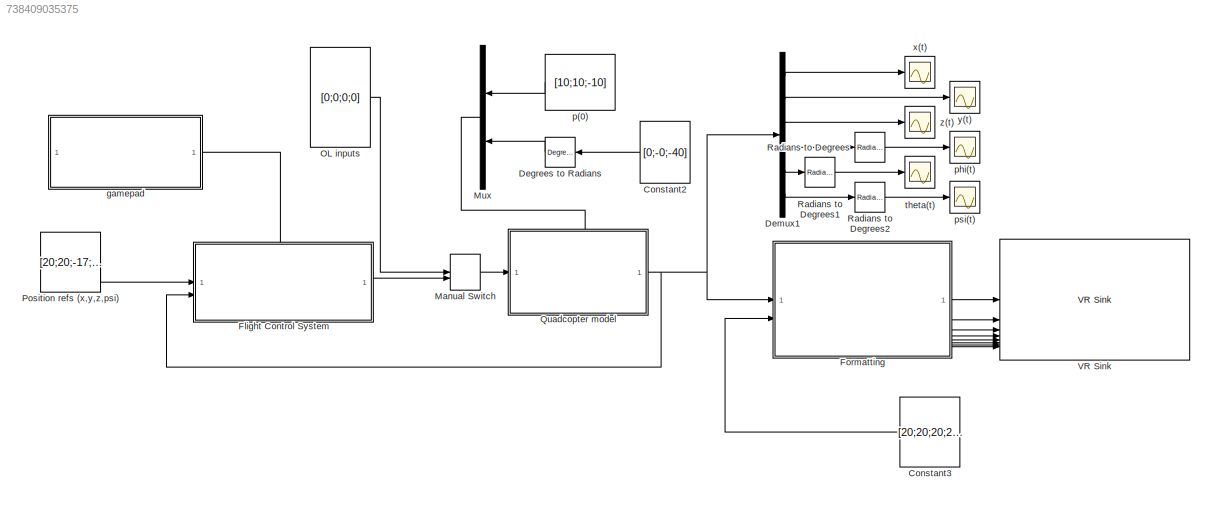
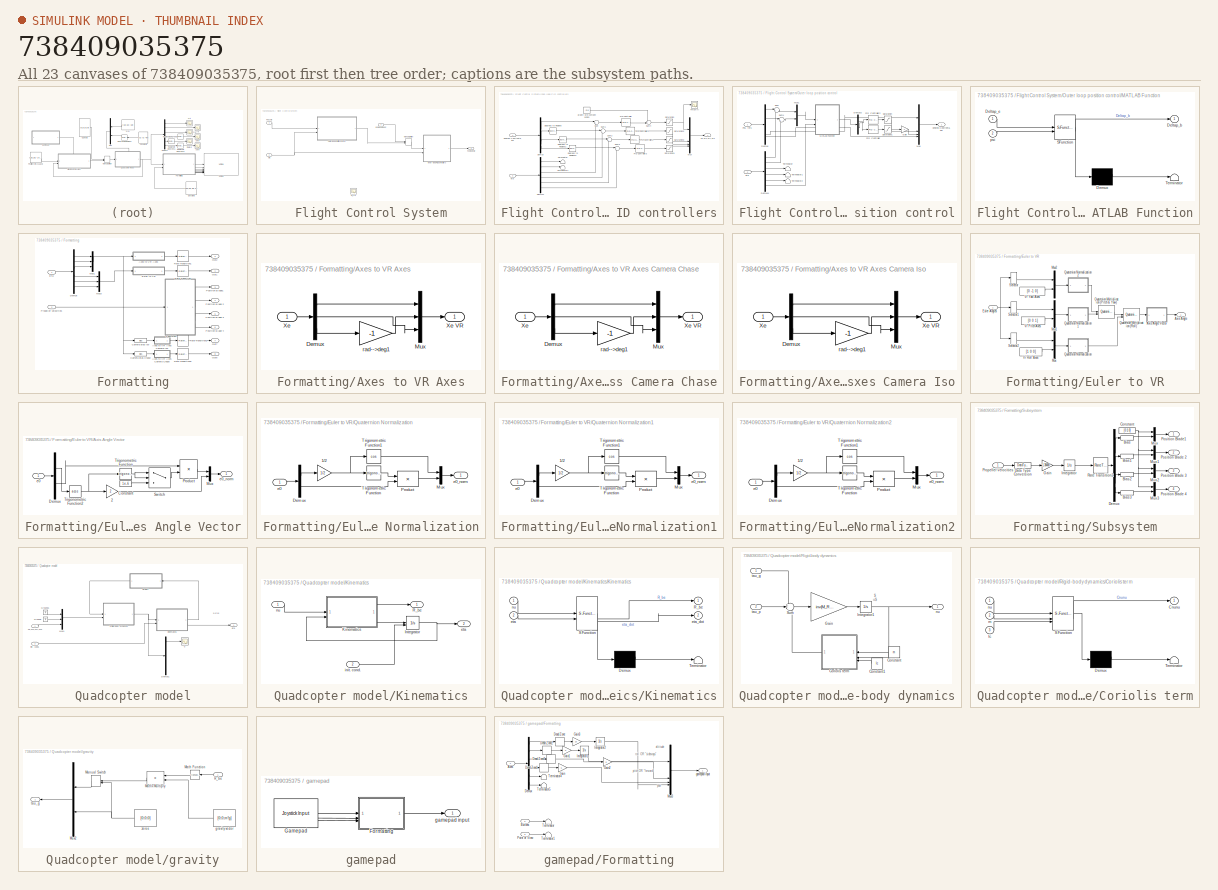
[diagram: thumbnail index - all 23 canvases of the model, root first then tree order]
MODEL slx_738409035375
KIND model
CONFIG AbsTol = auto
CONFIG EnableMultiTasking = on
CONFIG FixedStep = 0.005
CONFIG MaxStep = auto
CONFIG MinStep = auto
CONFIG RelTol = 1e-3
CONFIG SampleTimeConstraint = Unconstrained
CONFIG SolverName = ode3
CONFIG StartTime = 0
CONFIG StopTime = inf
BLOCK [Constant] Constant2
  Value = [0;-0;-40]
  VectorParams1D = off
BLOCK [Constant] Constant3
  Value = [20;20;20;20]
  VectorParams1D = off
BLOCK [Reference] Degrees to Radians  REF=simulink_extras/Transformations/Degrees to
Radians
  NameLocation = top
  SourceBlock = simulink_extras/Transformations/Degrees to\nRadians
  SourceType = DegreesToRadians
BLOCK [Demux] Demux1
  Outputs = 6
BLOCK [SubSystem] Flight Control System
  PortSchema = {"entries":[{"content":{"sides":[{"content":{"connectorIds":["In1","In2"]},"type":"ConnectorPlacement.EquallySpacedRectSide","uuid":"8ffec179-99fb-4b4c-a09d-a73fa0154dea"},{"content":{"connectorIds":["Out1"],"side":"RIGHT"},"type":"ConnectorPlacement.EquallySpacedRectSide","uuid":"b9ff487d-1da1-449a-81c9-f1838b0d3727"},{"content":{"connectorIds":["In3"],"side":"TOP"},"type":"ConnectorPlacement.Equ...<+251ch>
BLOCK [Outport] Flight Control System/Fz,mx,my,mz
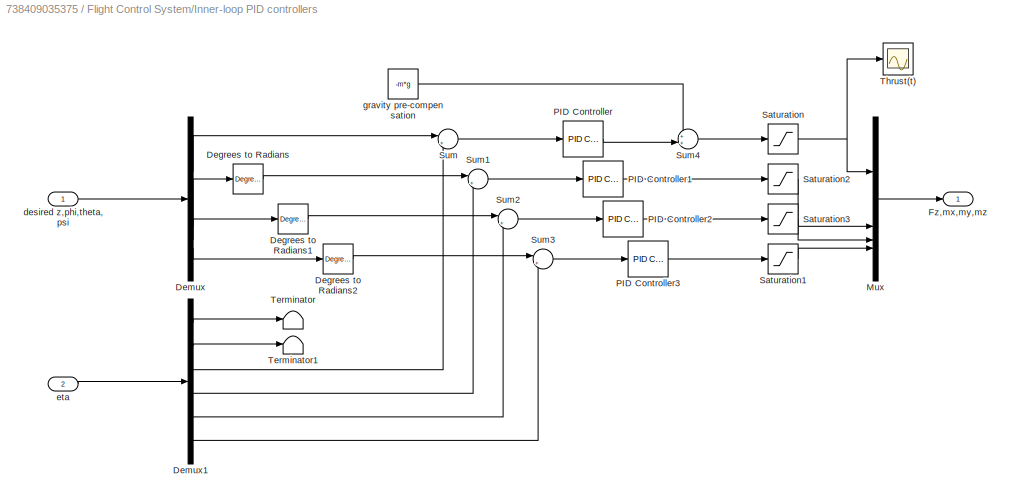
BLOCK [SubSystem] Flight Control System/Inner-loop PID controllers
BLOCK [Reference] Flight Control System/Inner-loop PID controllers/Degrees to Radians  REF=simulink_extras/Transformations/Degrees to
Radians
  SourceBlock = simulink_extras/Transformations/Degrees to\nRadians
  SourceType = DegreesToRadians
BLOCK [Reference] Flight Control System/Inner-loop PID controllers/Degrees to Radians1  REF=simulink_extras/Transformations/Degrees to
Radians
  SourceBlock = simulink_extras/Transformations/Degrees to\nRadians
  SourceType = DegreesToRadians
BLOCK [Reference] Flight Control System/Inner-loop PID controllers/Degrees to Radians2  REF=simulink_extras/Transformations/Degrees to
Radians
  SourceBlock = simulink_extras/Transformations/Degrees to\nRadians
  SourceType = DegreesToRadians
BLOCK [Demux] Flight Control System/Inner-loop PID controllers/Demux
BLOCK [Demux] Flight Control System/Inner-loop PID controllers/Demux1
  Outputs = 6
BLOCK [Outport] Flight Control System/Inner-loop PID controllers/Fz,mx,my,mz
BLOCK [Mux] Flight Control System/Inner-loop PID controllers/Mux
  DisplayOption = bar
BLOCK [Reference] Flight Control System/Inner-loop PID controllers/PID Controller  REF=slpidlib/PID Controller
  LibrarySourceBlock = simulink/Continuous/PID Controller
  SourceBlock = slpidlib/PID Controller
  SourceType = PID 1dof
BLOCK [Reference] Flight Control System/Inner-loop PID controllers/PID Controller1  REF=slpidlib/PID Controller
  LibrarySourceBlock = simulink/Continuous/PID Controller
  SourceBlock = slpidlib/PID Controller
  SourceType = PID 1dof
BLOCK [Reference] Flight Control System/Inner-loop PID controllers/PID Controller2  REF=slpidlib/PID Controller
  LibrarySourceBlock = simulink/Continuous/PID Controller
  SourceBlock = slpidlib/PID Controller
  SourceType = PID 1dof
BLOCK [Reference] Flight Control System/Inner-loop PID controllers/PID Controller3  REF=slpidlib/PID Controller
  LibrarySourceBlock = simulink/Continuous/PID Controller
  SourceBlock = slpidlib/PID Controller
  SourceType = PID 1dof
BLOCK [Saturate] Flight Control System/Inner-loop PID controllers/Saturation
  LowerLimit = -100
  UpperLimit = 100
BLOCK [Saturate] Flight Control System/Inner-loop PID controllers/Saturation1
  LowerLimit = -100
  UpperLimit = 100
BLOCK [Saturate] Flight Control System/Inner-loop PID controllers/Saturation2
  LowerLimit = -100
  UpperLimit = 100
BLOCK [Saturate] Flight Control System/Inner-loop PID controllers/Saturation3
  LowerLimit = -100
  UpperLimit = 100
BLOCK [Sum] Flight Control System/Inner-loop PID controllers/Sum
  Inputs = |+-
BLOCK [Sum] Flight Control System/Inner-loop PID controllers/Sum1
  Inputs = |+-
BLOCK [Sum] Flight Control System/Inner-loop PID controllers/Sum2
  Inputs = |+-
BLOCK [Sum] Flight Control System/Inner-loop PID controllers/Sum3
  Inputs = |+-
BLOCK [Sum] Flight Control System/Inner-loop PID controllers/Sum4
  Inputs = ++|
BLOCK [Terminator] Flight Control System/Inner-loop PID controllers/Terminator
BLOCK [Terminator] Flight Control System/Inner-loop PID controllers/Terminator1
BLOCK [Scope] Flight Control System/Inner-loop PID controllers/Thrust(t)
  Floating = off
  NumInputPorts = 1
  ScopeSpecificationString = Simulink.scopes.TimeScopeBlockCfg('CurrentConfiguration', extmgr.ConfigurationSet(extmgr.Configuration('Core','General UI',true),extmgr.Configuration('Core','Source UI',true),extmgr.Configuration('Sources','WiredSimulink',true,'DataLoggingVariableName','ScopeData6'),extmgr.Configuration('Visuals','Time Domain',true,'SerializedDisplays',{struct('MinYLimReal','-112.66583','MaxYLimReal','13.99248','Y...<+1456ch>
BLOCK [Inport] Flight Control System/Inner-loop PID controllers/desired z,phi,theta,psi
BLOCK [Inport] Flight Control System/Inner-loop PID controllers/eta
  Port = 2
BLOCK [Constant] Flight Control System/Inner-loop PID controllers/gravity pre-compensation
  Value = -m*g
BLOCK [ManualSwitch] Flight Control System/Manual Switch
  CurrentSetting = 0
BLOCK [SubSystem] Flight Control System/Outer loop position control
BLOCK [Demux] Flight Control System/Outer loop position control/Demux
BLOCK [Demux] Flight Control System/Outer loop position control/Demux1
  Outputs = 6
BLOCK [Demux] Flight Control System/Outer loop position control/Demux2
  Outputs = 2
BLOCK [Gain] Flight Control System/Outer loop position control/Gain
  Gain = -1
BLOCK [SubSystem] Flight Control System/Outer loop position control/MATLAB Function
  ErrorFcn = Stateflow.Translate.translate
  PermitHierarchicalResolution = ExplicitOnly
  SFBlockType = MATLAB Function
  TreatAsAtomicUnit = on
BLOCK [Demux] Flight Control System/Outer loop position control/MATLAB Function/ Demux 
  Outputs = 1
BLOCK [S-Function] Flight Control System/Outer loop position control/MATLAB Function/ SFunction 
  EnableBusSupport = on
  FunctionName = sf_sfun
  PortCounts = [2 2]
  SFcnIsStateOwnerBlock = off
  SFunctionDeploymentMode = off
  Tag = Stateflow S-Function 1
BLOCK [Terminator] Flight Control System/Outer loop position control/MATLAB Function/ Terminator 
BLOCK [Outport] Flight Control System/Outer loop position control/MATLAB Function/Deltap_b
BLOCK [Inport] Flight Control System/Outer loop position control/MATLAB Function/Deltap_e
BLOCK [Inport] Flight Control System/Outer loop position control/MATLAB Function/psi
  Port = 2
BLOCK [Mux] Flight Control System/Outer loop position control/Mux
  DisplayOption = bar
BLOCK [Mux] Flight Control System/Outer loop position control/Mux1
  DisplayOption = bar
  Inputs = 2
BLOCK [Reference] Flight Control System/Outer loop position control/PID Controller  REF=slpidlib/PID Controller
  LibrarySourceBlock = simulink/Continuous/PID Controller
  SourceBlock = slpidlib/PID Controller
  SourceType = PID 1dof
BLOCK [Reference] Flight Control System/Outer loop position control/PID Controller2  REF=slpidlib/PID Controller
  LibrarySourceBlock = simulink/Continuous/PID Controller
  SourceBlock = slpidlib/PID Controller
  SourceType = PID 1dof
BLOCK [Inport] Flight Control System/Outer loop position control/Pos. refs
BLOCK [Saturate] Flight Control System/Outer loop position control/Saturation
  LowerLimit = -5
  UpperLimit = 5
BLOCK [Saturate] Flight Control System/Outer loop position control/Saturation1
  LowerLimit = -5
  UpperLimit = 5
BLOCK [Sum] Flight Control System/Outer loop position control/Sum
  Inputs = |+-
BLOCK [Sum] Flight Control System/Outer loop position control/Sum1
  Inputs = |+-
BLOCK [Terminator] Flight Control System/Outer loop position control/Terminator
BLOCK [Terminator] Flight Control System/Outer loop position control/Terminator1
BLOCK [Terminator] Flight Control System/Outer loop position control/Terminator2
BLOCK [Outport] Flight Control System/Outer loop position control/desired z,phi,theta,psi
BLOCK [Inport] Flight Control System/Outer loop position control/eta
  Port = 2
BLOCK [Inport] Flight Control System/Pos. refs
BLOCK [Inport] Flight Control System/eta
  Port = 2
BLOCK [Inport] Flight Control System/gamepad input
  Port = 3
BLOCK [Scope] Flight Control System/m_y(t)
  Floating = off
  NumInputPorts = 1
  ScopeSpecificationString = Simulink.scopes.TimeScopeBlockCfg('CurrentConfiguration', extmgr.ConfigurationSet(extmgr.Configuration('Core','General UI',true),extmgr.Configuration('Core','Source UI',true),extmgr.Configuration('Sources','WiredSimulink',true,'DataLoggingVariableName','ScopeData3'),extmgr.Configuration('Visuals','Time Domain',true,'SerializedDisplays',{struct('MinYLimReal','-1.00000','MaxYLimReal','1.00000','YLab...<+1433ch>
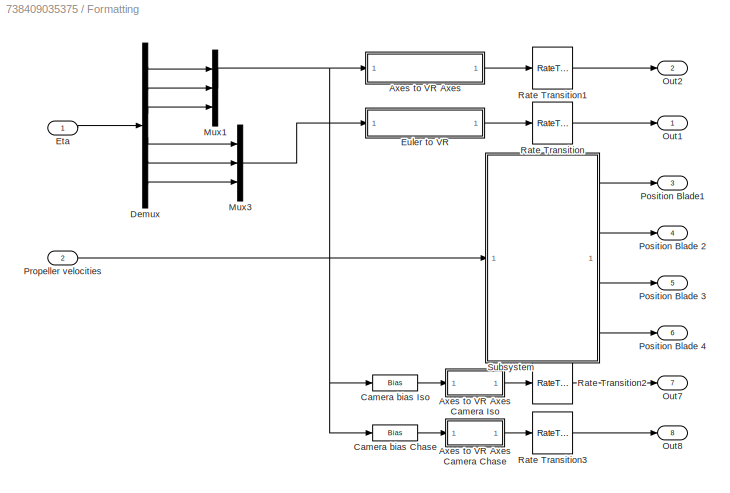
BLOCK [SubSystem] Formatting
BLOCK [SubSystem] Formatting/Axes to VR Axes
BLOCK [SubSystem] Formatting/Axes to VR Axes Camera Chase
BLOCK [Demux] Formatting/Axes to VR Axes Camera Chase/Demux
  DisplayOption = none
  Outputs = 3
BLOCK [Mux] Formatting/Axes to VR Axes Camera Chase/Mux
  DisplayOption = bar
  Inputs = 3
BLOCK [Inport] Formatting/Axes to VR Axes Camera Chase/Xe
BLOCK [Outport] Formatting/Axes to VR Axes Camera Chase/Xe VR
  VectorParamsAs1DForOutWhenUnconnected = off
BLOCK [Gain] Formatting/Axes to VR Axes Camera Chase/rad-->deg1
  Gain = -1
  NameLocation = top
  OutDataTypeStr = Inherit: Same as input
  ParamDataTypeStr = Inherit: Same as input
  SaturateOnIntegerOverflow = on
BLOCK [SubSystem] Formatting/Axes to VR Axes Camera Iso
BLOCK [Demux] Formatting/Axes to VR Axes Camera Iso/Demux
  DisplayOption = none
  Outputs = 3
BLOCK [Mux] Formatting/Axes to VR Axes Camera Iso/Mux
  DisplayOption = bar
  Inputs = 3
BLOCK [Inport] Formatting/Axes to VR Axes Camera Iso/Xe
BLOCK [Outport] Formatting/Axes to VR Axes Camera Iso/Xe VR
  VectorParamsAs1DForOutWhenUnconnected = off
BLOCK [Gain] Formatting/Axes to VR Axes Camera Iso/rad-->deg1
  Gain = -1
  NameLocation = top
  OutDataTypeStr = Inherit: Same as input
  ParamDataTypeStr = Inherit: Same as input
  SaturateOnIntegerOverflow = on
BLOCK [Demux] Formatting/Axes to VR Axes/Demux
  DisplayOption = none
  Outputs = 3
BLOCK [Mux] Formatting/Axes to VR Axes/Mux
  DisplayOption = bar
  Inputs = 3
BLOCK [Inport] Formatting/Axes to VR Axes/Xe
BLOCK [Outport] Formatting/Axes to VR Axes/Xe VR
  VectorParamsAs1DForOutWhenUnconnected = off
BLOCK [Gain] Formatting/Axes to VR Axes/rad-->deg1
  Gain = -1
  NameLocation = top
  OutDataTypeStr = Inherit: Same as input
  ParamDataTypeStr = Inherit: Same as input
  SaturateOnIntegerOverflow = on
BLOCK [Bias] Formatting/Camera bias Chase
  Bias = [-4 0 -.9558]'
  SaturateOnIntegerOverflow = off
BLOCK [Bias] Formatting/Camera bias Iso
  Bias = [0.9009 .99 -.6247]'
  SaturateOnIntegerOverflow = off
BLOCK [Demux] Formatting/Demux
  Outputs = 6
BLOCK [Inport] Formatting/Eta
BLOCK [SubSystem] Formatting/Euler to VR
BLOCK [Outport] Formatting/Euler to VR/Axis Angle
  VectorParamsAs1DForOutWhenUnconnected = off
BLOCK [SubSystem] Formatting/Euler to VR/Axis Angle Vector
BLOCK [Gain] Formatting/Euler to VR/Axis Angle Vector/2
  Gain = 2
  OutDataTypeStr = Inherit: Same as input
  ParamDataTypeStr = Inherit: Same as input
  SaturateOnIntegerOverflow = on
BLOCK [Constant] Formatting/Euler to VR/Axis Angle Vector/Constant
  Value = 1e-6
BLOCK [Demux] Formatting/Euler to VR/Axis Angle Vector/Demux
  DisplayOption = none
  Outputs = [1 3 ]
BLOCK [Mux] Formatting/Euler to VR/Axis Angle Vector/Mux
  DisplayOption = bar
  Inputs = 2
BLOCK [Product] Formatting/Euler to VR/Axis Angle Vector/Product
  InputSameDT = on
  Inputs = */
  OutDataTypeStr = Inherit: Same as first input
  SaturateOnIntegerOverflow = on
BLOCK [Switch] Formatting/Euler to VR/Axis Angle Vector/Switch
  Criteria = u2 ~= 0
  InputSameDT = off
  SaturateOnIntegerOverflow = off
BLOCK [Trigonometry] Formatting/Euler to VR/Axis Angle Vector/Trigonometric Function
BLOCK [Trigonometry] Formatting/Euler to VR/Axis Angle Vector/Trigonometric Function2
  Operator = acos
BLOCK [Inport] Formatting/Euler to VR/Axis Angle Vector/e0
BLOCK [Outport] Formatting/Euler to VR/Axis Angle Vector/e0_norm
  VectorParamsAs1DForOutWhenUnconnected = off
BLOCK [Inport] Formatting/Euler to VR/Euler Angles
BLOCK [Mux] Formatting/Euler to VR/Mux
  DisplayOption = bar
  Inputs = 2
BLOCK [Mux] Formatting/Euler to VR/Mux1
  DisplayOption = bar
  Inputs = 2
BLOCK [Mux] Formatting/Euler to VR/Mux2
  DisplayOption = bar
  Inputs = 2
BLOCK [Reference] Formatting/Euler to VR/Quaternion Multiplication (Pitch & Yaw)  REF=aerolibutil/Quaternion
Multiplication
  SourceBlock = aerolibutil/Quaternion\nMultiplication
  SourceType = Quaternion Multiplication
BLOCK [Reference] Formatting/Euler to VR/Quaternion Multiplication (Roll)  REF=aerolibutil/Quaternion
Multiplication
  SourceBlock = aerolibutil/Quaternion\nMultiplication
  SourceType = Quaternion Multiplication
BLOCK [SubSystem] Formatting/Euler to VR/Quaternion Normalization
BLOCK [Gain] Formatting/Euler to VR/Quaternion Normalization/1//2
  Gain = 1/2
  OutDataTypeStr = Inherit: Same as input
  ParamDataTypeStr = Inherit: Same as input
  SaturateOnIntegerOverflow = on
BLOCK [Demux] Formatting/Euler to VR/Quaternion Normalization/Demux
  DisplayOption = none
  Outputs = [1 3]
BLOCK [Mux] Formatting/Euler to VR/Quaternion Normalization/Mux
  DisplayOption = bar
  Inputs = 2
BLOCK [Product] Formatting/Euler to VR/Quaternion Normalization/Product
  InputSameDT = on
  OutDataTypeStr = Inherit: Same as first input
  SaturateOnIntegerOverflow = on
BLOCK [Trigonometry] Formatting/Euler to VR/Quaternion Normalization/Trigonometric Function
BLOCK [Trigonometry] Formatting/Euler to VR/Quaternion Normalization/Trigonometric Function1
  Operator = cos
BLOCK [Inport] Formatting/Euler to VR/Quaternion Normalization/e0
BLOCK [Outport] Formatting/Euler to VR/Quaternion Normalization/e0_norm
  VectorParamsAs1DForOutWhenUnconnected = off
BLOCK [SubSystem] Formatting/Euler to VR/Quaternion Normalization1
BLOCK [Gain] Formatting/Euler to VR/Quaternion Normalization1/1//2
  Gain = 1/2
  OutDataTypeStr = Inherit: Same as input
  ParamDataTypeStr = Inherit: Same as input
  SaturateOnIntegerOverflow = on
BLOCK [Demux] Formatting/Euler to VR/Quaternion Normalization1/Demux
  DisplayOption = none
  Outputs = [1 3]
BLOCK [Mux] Formatting/Euler to VR/Quaternion Normalization1/Mux
  DisplayOption = bar
  Inputs = 2
BLOCK [Product] Formatting/Euler to VR/Quaternion Normalization1/Product
  InputSameDT = on
  OutDataTypeStr = Inherit: Same as first input
  SaturateOnIntegerOverflow = on
BLOCK [Trigonometry] Formatting/Euler to VR/Quaternion Normalization1/Trigonometric Function
BLOCK [Trigonometry] Formatting/Euler to VR/Quaternion Normalization1/Trigonometric Function1
  Operator = cos
BLOCK [Inport] Formatting/Euler to VR/Quaternion Normalization1/e0
BLOCK [Outport] Formatting/Euler to VR/Quaternion Normalization1/e0_norm
  VectorParamsAs1DForOutWhenUnconnected = off
BLOCK [SubSystem] Formatting/Euler to VR/Quaternion Normalization2
BLOCK [Gain] Formatting/Euler to VR/Quaternion Normalization2/1//2
  Gain = 1/2
  OutDataTypeStr = Inherit: Same as input
  ParamDataTypeStr = Inherit: Same as input
  SaturateOnIntegerOverflow = on
BLOCK [Demux] Formatting/Euler to VR/Quaternion Normalization2/Demux
  DisplayOption = none
  Outputs = [1 3]
BLOCK [Mux] Formatting/Euler to VR/Quaternion Normalization2/Mux
  DisplayOption = bar
  Inputs = 2
BLOCK [Product] Formatting/Euler to VR/Quaternion Normalization2/Product
  InputSameDT = on
  OutDataTypeStr = Inherit: Same as first input
  SaturateOnIntegerOverflow = on
BLOCK [Trigonometry] Formatting/Euler to VR/Quaternion Normalization2/Trigonometric Function
BLOCK [Trigonometry] Formatting/Euler to VR/Quaternion Normalization2/Trigonometric Function1
  Operator = cos
BLOCK [Inport] Formatting/Euler to VR/Quaternion Normalization2/e0
BLOCK [Outport] Formatting/Euler to VR/Quaternion Normalization2/e0_norm
  VectorParamsAs1DForOutWhenUnconnected = off
BLOCK [Selector] Formatting/Euler to VR/Selector
  IndexOptions = Index vector (dialog)
  Indices = [3]
  InputPortWidth = 3
  OutputSizes = 1
BLOCK [Selector] Formatting/Euler to VR/Selector1
  IndexOptions = Index vector (dialog)
  Indices = [2]
  InputPortWidth = 3
  OutputSizes = 1
BLOCK [Selector] Formatting/Euler to VR/Selector2
  IndexOptions = Index vector (dialog)
  Indices = [1]
  InputPortWidth = 3
  OutputSizes = 1
BLOCK [Constant] Formatting/Euler to VR/Vr Pitch Axes
  NameLocation = top
  Value = [0 0 1]
BLOCK [Constant] Formatting/Euler to VR/Vr Roll Axes
  NameLocation = top
  Value = [1 0 0]
BLOCK [Constant] Formatting/Euler to VR/Vr Yaw Axes
  Value = [0 -1 0]
BLOCK [Mux] Formatting/Mux1
  DisplayOption = bar
  Inputs = 3
BLOCK [Mux] Formatting/Mux3
  DisplayOption = bar
  Inputs = 3
BLOCK [Outport] Formatting/Out1
BLOCK [Outport] Formatting/Out2
  Port = 2
BLOCK [Outport] Formatting/Out7
  Port = 7
BLOCK [Outport] Formatting/Out8
  Port = 8
BLOCK [Outport] Formatting/Position Blade 2
  Port = 4
BLOCK [Outport] Formatting/Position Blade 3
  Port = 5
BLOCK [Outport] Formatting/Position Blade 4
  Port = 6
BLOCK [Outport] Formatting/Position Blade1
  Port = 3
BLOCK [Inport] Formatting/Propeller velocities
  Port = 2
BLOCK [RateTransition] Formatting/Rate Transition
BLOCK [RateTransition] Formatting/Rate Transition1
BLOCK [RateTransition] Formatting/Rate Transition2
BLOCK [RateTransition] Formatting/Rate Transition3
BLOCK [SubSystem] Formatting/Subsystem
BLOCK [Bias] Formatting/Subsystem/Bias
  Bias = .1
  SaturateOnIntegerOverflow = off
BLOCK [Bias] Formatting/Subsystem/Bias1
  Bias = -.3
  SaturateOnIntegerOverflow = off
BLOCK [Bias] Formatting/Subsystem/Bias2
  Bias = .5
  SaturateOnIntegerOverflow = off
BLOCK [Bias] Formatting/Subsystem/Bias3
  Bias = .7
  SaturateOnIntegerOverflow = off
BLOCK [Constant] Formatting/Subsystem/Constant
  Value = [0 1 0]
BLOCK [DataTypeConversion] Formatting/Subsystem/Data Type Conversion
  OutDataTypeStr = double
  RndMeth = Floor
  SaturateOnIntegerOverflow = off
BLOCK [Demux] Formatting/Subsystem/Demux
BLOCK [Gain] Formatting/Subsystem/Gain
  Gain = 1.38408
BLOCK [Integrator] Formatting/Subsystem/Integrator
  InitialCondition = [.1 ; .2 ;-.3 ;-.4]
  WrapState = on
  WrappedStateLowerValue = -2*pi
  WrappedStateUpperValue = 2*pi
BLOCK [Mux] Formatting/Subsystem/Mux
  DisplayOption = bar
  Inputs = 2
BLOCK [Mux] Formatting/Subsystem/Mux1
  DisplayOption = bar
  Inputs = 2
BLOCK [Mux] Formatting/Subsystem/Mux2
  DisplayOption = bar
  Inputs = 2
BLOCK [Mux] Formatting/Subsystem/Mux3
  DisplayOption = bar
  Inputs = 2
BLOCK [Outport] Formatting/Subsystem/Position Blade 2
  Port = 2
  VectorParamsAs1DForOutWhenUnconnected = off
BLOCK [Outport] Formatting/Subsystem/Position Blade 3
  Port = 3
  VectorParamsAs1DForOutWhenUnconnected = off
BLOCK [Outport] Formatting/Subsystem/Position Blade 4
  Port = 4
  VectorParamsAs1DForOutWhenUnconnected = off
BLOCK [Outport] Formatting/Subsystem/Position Blade1
  VectorParamsAs1DForOutWhenUnconnected = off
BLOCK [Inport] Formatting/Subsystem/Propeller velocities
BLOCK [RateTransition] Formatting/Subsystem/Rate Transition2
BLOCK [ManualSwitch] Manual Switch
  CurrentSetting = 0
BLOCK [Mux] Mux
  DisplayOption = bar
  Inputs = 2
  NameLocation = top
BLOCK [Constant] OL inputs
  Value = [0;0;0;0]
  VectorParams1D = off
BLOCK [Constant] Position refs (x,y,z,psi)
  Value = [20;20;-17;-45]
  VectorParams1D = off
BLOCK [SubSystem] Quadcopter model
  PortSchema = {"entries":[{"content":{"sides":[{"content":{"connectorIds":["In1"]},"type":"ConnectorPlacement.EquallySpacedRectSide","uuid":"c5c2dfb8-9ff8-4aa4-96a6-7fa0d886c51f"},{"content":{"connectorIds":["Out1"],"side":"RIGHT"},"type":"ConnectorPlacement.EquallySpacedRectSide","uuid":"2d7c7d5c-4ac5-4ebd-b09f-6a78733e851d"},{"content":{"connectorIds":["In2"],"side":"TOP"},"type":"ConnectorPlacement.EquallySp...<+245ch>
BLOCK [Demux] Quadcopter model/Demux1
  Outputs = 6
BLOCK [Inport] Quadcopter model/Fz,mx,my,mz
BLOCK [Ground] Quadcopter model/Ground
BLOCK [Ground] Quadcopter model/Ground1
BLOCK [SubSystem] Quadcopter model/Kinematics
BLOCK [Integrator] Quadcopter model/Kinematics/Integrator
  InitialCondition = [0;0;-10;0;pi/2;0]
  InitialConditionSource = external
BLOCK [SubSystem] Quadcopter model/Kinematics/Kinematics
  ErrorFcn = Stateflow.Translate.translate
  PermitHierarchicalResolution = ExplicitOnly
  SFBlockType = MATLAB Function
  TreatAsAtomicUnit = on
BLOCK [Demux] Quadcopter model/Kinematics/Kinematics/ Demux 
  Outputs = 1
BLOCK [S-Function] Quadcopter model/Kinematics/Kinematics/ SFunction 
  EnableBusSupport = on
  FunctionName = sf_sfun
  PortCounts = [2 3]
  SFcnIsStateOwnerBlock = off
  SFunctionDeploymentMode = off
  Tag = Stateflow S-Function 4
BLOCK [Terminator] Quadcopter model/Kinematics/Kinematics/ Terminator 
BLOCK [Outport] Quadcopter model/Kinematics/Kinematics/R_be
BLOCK [Inport] Quadcopter model/Kinematics/Kinematics/eta
  Port = 2
BLOCK [Outport] Quadcopter model/Kinematics/Kinematics/eta_dot
  Port = 2
BLOCK [Inport] Quadcopter model/Kinematics/Kinematics/nu
BLOCK [Outport] Quadcopter model/Kinematics/R_be
BLOCK [Outport] Quadcopter model/Kinematics/eta
  Port = 2
BLOCK [Inport] Quadcopter model/Kinematics/init. cond.
  Port = 2
BLOCK [Inport] Quadcopter model/Kinematics/nu
BLOCK [Mux] Quadcopter model/Mux1
  DisplayOption = bar
  Inputs = 3
BLOCK [SubSystem] Quadcopter model/Rigid-body dynamics
BLOCK [Constant] Quadcopter model/Rigid-body dynamics/Constant
  Value = m
BLOCK [Constant] Quadcopter model/Rigid-body dynamics/Constant1
  Value = Ic
  VectorParams1D = off
BLOCK [SubSystem] Quadcopter model/Rigid-body dynamics/Coriolis term
  ErrorFcn = Stateflow.Translate.translate
  PermitHierarchicalResolution = ExplicitOnly
  SFBlockType = MATLAB Function
  TreatAsAtomicUnit = on
BLOCK [Demux] Quadcopter model/Rigid-body dynamics/Coriolis term/ Demux 
  Outputs = 1
BLOCK [S-Function] Quadcopter model/Rigid-body dynamics/Coriolis term/ SFunction 
  EnableBusSupport = on
  FunctionName = sf_sfun
  PortCounts = [3 2]
  SFcnIsStateOwnerBlock = off
  SFunctionDeploymentMode = off
  Tag = Stateflow S-Function 2
BLOCK [Terminator] Quadcopter model/Rigid-body dynamics/Coriolis term/ Terminator 
BLOCK [Outport] Quadcopter model/Rigid-body dynamics/Coriolis term/Cnunu
BLOCK [Inport] Quadcopter model/Rigid-body dynamics/Coriolis term/Ic
  Port = 3
BLOCK [Inport] Quadcopter model/Rigid-body dynamics/Coriolis term/m
  Port = 2
BLOCK [Inport] Quadcopter model/Rigid-body dynamics/Coriolis term/nu
BLOCK [Gain] Quadcopter model/Rigid-body dynamics/Gain
  Gain = inv(M_RB)
  Multiplication = Matrix(K*u) (u vector)
BLOCK [Integrator] Quadcopter model/Rigid-body dynamics/Integrator1
  InitialCondition = [0;0;0;0;0;0]
BLOCK [Sum] Quadcopter model/Rigid-body dynamics/Sum
  Inputs = ++-
BLOCK [Outport] Quadcopter model/Rigid-body dynamics/nu
BLOCK [Inport] Quadcopter model/Rigid-body dynamics/tau_g
BLOCK [Inport] Quadcopter model/Rigid-body dynamics/tau_p
  Port = 2
BLOCK [Outport] Quadcopter model/eta
BLOCK [SubSystem] Quadcopter model/gravity
BLOCK [ManualSwitch] Quadcopter model/gravity/Manual Switch
BLOCK [Math] Quadcopter model/gravity/Math Function
  Operator = transpose
BLOCK [Product] Quadcopter model/gravity/Matrix Multiply
  Multiplication = Matrix(*)
BLOCK [Mux] Quadcopter model/gravity/Mux2
  DisplayOption = bar
  Inputs = 2
  NameLocation = top
BLOCK [Inport] Quadcopter model/gravity/R_be
BLOCK [Constant] Quadcopter model/gravity/gravity vector
  Value = [0;0;m*g]
  VectorParams1D = off
BLOCK [Outport] Quadcopter model/gravity/tau_g
BLOCK [Constant] Quadcopter model/gravity/zeros
  NameLocation = top
  Value = [0;0;0]
  VectorParams1D = off
BLOCK [Inport] Quadcopter model/init. cond.
  Port = 2
BLOCK [Scope] Quadcopter model/u
  Floating = off
  NumInputPorts = 1
  ScopeSpecificationString = Simulink.scopes.TimeScopeBlockCfg('CurrentConfiguration', extmgr.ConfigurationSet(extmgr.Configuration('Core','General UI',true),extmgr.Configuration('Core','Source UI',true),extmgr.Configuration('Sources','WiredSimulink',true,'DataLoggingVariableName','ScopeData2'),extmgr.Configuration('Visuals','Time Domain',true,'SerializedDisplays',{struct('MinYLimReal','-0.42911','MaxYLimReal','1.08671','YLab...<+1396ch>
BLOCK [Reference] Radians to Degrees  REF=simulink_extras/Transformations/Radians
to Degrees
  SourceBlock = simulink_extras/Transformations/Radians\nto Degrees
  SourceType = RadiansToDegrees
BLOCK [Reference] Radians to Degrees1  REF=simulink_extras/Transformations/Radians
to Degrees
  SourceBlock = simulink_extras/Transformations/Radians\nto Degrees
  SourceType = RadiansToDegrees
BLOCK [Reference] Radians to Degrees2  REF=simulink_extras/Transformations/Radians
to Degrees
  SourceBlock = simulink_extras/Transformations/Radians\nto Degrees
  SourceType = RadiansToDegrees
BLOCK [Reference] VR Sink  REF=vrlib/VR Sink
  InstantiateOnLoad = on
  SourceBlock = vrlib/VR Sink
  SourceType = Virtual Reality Sink
BLOCK [SubSystem] gamepad
  Commented = on
BLOCK [SubSystem] gamepad/Formatting
BLOCK [Inport] gamepad/Formatting/Axes
BLOCK [Inport] gamepad/Formatting/Buttons
  Port = 2
BLOCK [DeadZone] gamepad/Formatting/Dead Zone
  LowerValue = -0.2
  UpperValue = 0.2
BLOCK [DeadZone] gamepad/Formatting/Dead Zone1
  LowerValue = -0.2
  UpperValue = 0.2
BLOCK [DeadZone] gamepad/Formatting/Dead Zone2
  LowerValue = -0.2
  UpperValue = 0.2
BLOCK [DeadZone] gamepad/Formatting/Dead Zone3
  LowerValue = -0.2
  UpperValue = 0.2
BLOCK [Demux] gamepad/Formatting/Demux
  Outputs = 6
BLOCK [Gain] gamepad/Formatting/Gain
  Gain = 5
BLOCK [Gain] gamepad/Formatting/Gain1
BLOCK [Gain] gamepad/Formatting/Gain2
  Gain = 5
BLOCK [Gain] gamepad/Formatting/Gain3
  Gain = 10
BLOCK [Integrator] gamepad/Formatting/Integrator1
  InitialCondition = -17
BLOCK [Integrator] gamepad/Formatting/Integrator2
  InitialCondition = -45
BLOCK [Mux] gamepad/Formatting/Mux3
  DisplayOption = bar
BLOCK [Inport] gamepad/Formatting/Point of View
  Port = 3
BLOCK [Terminator] gamepad/Formatting/Terminator
BLOCK [Terminator] gamepad/Formatting/Terminator1
BLOCK [Terminator] gamepad/Formatting/Terminator4
BLOCK [Terminator] gamepad/Formatting/Terminator5
BLOCK [Outport] gamepad/Formatting/gamepad input
BLOCK [Reference] gamepad/Gamepad  REF=vrlib/Joystick Input
  SourceBlock = vrlib/Joystick Input
  SourceType = Joystick Input
BLOCK [Outport] gamepad/gamepad input
BLOCK [Constant] p(0)
  NameLocation = top
  Value = [10;10;-10]
  VectorParams1D = off
BLOCK [Scope] phi(t)
  Floating = off
  NameLocation = top
  NumInputPorts = 1
  ScopeSpecificationString = Simulink.scopes.TimeScopeBlockCfg('CurrentConfiguration', extmgr.ConfigurationSet(extmgr.Configuration('Core','General UI',true),extmgr.Configuration('Core','Source UI',true),extmgr.Configuration('Sources','WiredSimulink',true,'DataLoggingVariableName','ScopeData3'),extmgr.Configuration('Visuals','Time Domain',true,'SerializedDisplays',{struct('MinYLimReal','-1.00000','MaxYLimReal','1.00000','YLab...<+1406ch>
BLOCK [Scope] psi(t)
  Floating = off
  NameLocation = top
  NumInputPorts = 1
  ScopeSpecificationString = Simulink.scopes.TimeScopeBlockCfg('CurrentConfiguration', extmgr.ConfigurationSet(extmgr.Configuration('Core','General UI',true),extmgr.Configuration('Core','Source UI',true),extmgr.Configuration('Sources','WiredSimulink',true,'DataLoggingVariableName','ScopeData5'),extmgr.Configuration('Visuals','Time Domain',true,'SerializedDisplays',{struct('MinYLimReal','-1.00000','MaxYLimReal','1.00000','YLab...<+1407ch>
BLOCK [Scope] theta(t)
  Floating = off
  NameLocation = top
  NumInputPorts = 1
  ScopeSpecificationString = Simulink.scopes.TimeScopeBlockCfg('CurrentConfiguration', extmgr.ConfigurationSet(extmgr.Configuration('Core','General UI',true),extmgr.Configuration('Core','Source UI',true),extmgr.Configuration('Sources','WiredSimulink',true,'DataLoggingVariableName','ScopeData4'),extmgr.Configuration('Visuals','Time Domain',true,'SerializedDisplays',{struct('MinYLimReal','0.00144','MaxYLimReal','0.01083','YLabe...<+1431ch>
BLOCK [Scope] x(t)
  Floating = off
  NameLocation = top
  NumInputPorts = 1
  ScopeSpecificationString = Simulink.scopes.TimeScopeBlockCfg('CurrentConfiguration', extmgr.ConfigurationSet(extmgr.Configuration('Core','General UI',true),extmgr.Configuration('Core','Source UI',true),extmgr.Configuration('Sources','WiredSimulink',true),extmgr.Configuration('Visuals','Time Domain',true,'SerializedDisplays',{struct('MinYLimReal','64.13969','MaxYLimReal','75.78646','YLabelReal','','MinYLimMag','64.13969','Ma...<+1387ch>
BLOCK [Scope] y(t)
  Floating = off
  NameLocation = top
  NumInputPorts = 1
  ScopeSpecificationString = Simulink.scopes.TimeScopeBlockCfg('CurrentConfiguration', extmgr.ConfigurationSet(extmgr.Configuration('Core','General UI',true),extmgr.Configuration('Core','Source UI',true),extmgr.Configuration('Sources','WiredSimulink',true,'DataLoggingVariableName','ScopeData1'),extmgr.Configuration('Visuals','Time Domain',true,'SerializedDisplays',{struct('MinYLimReal','66.40869','MaxYLimReal','67.13196','YLa...<+1428ch>
BLOCK [Scope] z(t)
  Floating = off
  NameLocation = top
  NumInputPorts = 1
  ScopeSpecificationString = Simulink.scopes.TimeScopeBlockCfg('CurrentConfiguration', extmgr.ConfigurationSet(extmgr.Configuration('Core','General UI',true),extmgr.Configuration('Core','Source UI',true),extmgr.Configuration('Sources','WiredSimulink',true,'DataLoggingVariableName','ScopeData2'),extmgr.Configuration('Visuals','Time Domain',true,'SerializedDisplays',{struct('MinYLimReal','-18.96666','MaxYLimReal','-16.86198','Y...<+1428ch>
ANNOTATION Quadcopter model: $\eta$
ANNOTATION Quadcopter model/Rigid-body dynamics: $\nu$
ANNOTATION gamepad/Formatting: altitude
ANNOTATION gamepad/Formatting: pitch OR "forward"
ANNOTATION gamepad/Formatting: roll OR "sideways"
ANNOTATION gamepad/Formatting: yaw
LINE Constant2:1 -> Degrees to Radians:1
LINE Constant3:1 -> Formatting:2
LINE Degrees to Radians:1 -> Mux:2
LINE Demux1:1 -> x(t):1
LINE Demux1:2 -> y(t):1
LINE Demux1:3 -> z(t):1
LINE Demux1:4 -> Radians to Degrees:1
LINE Demux1:5 -> Radians to Degrees1:1
LINE Demux1:6 -> Radians to Degrees2:1
LINE Flight Control System/Inner-loop PID controllers/Degrees to Radians1:1 -> Flight Control System/Inner-loop PID controllers/Sum2:1
LINE Flight Control System/Inner-loop PID controllers/Degrees to Radians2:1 -> Flight Control System/Inner-loop PID controllers/Sum3:1
LINE Flight Control System/Inner-loop PID controllers/Degrees to Radians:1 -> Flight Control System/Inner-loop PID controllers/Sum1:1
LINE Flight Control System/Inner-loop PID controllers/Demux1:1 -> Flight Control System/Inner-loop PID controllers/Terminator:1
LINE Flight Control System/Inner-loop PID controllers/Demux1:2 -> Flight Control System/Inner-loop PID controllers/Terminator1:1
LINE Flight Control System/Inner-loop PID controllers/Demux1:3 -> Flight Control System/Inner-loop PID controllers/Sum:2
LINE Flight Control System/Inner-loop PID controllers/Demux1:4 -> Flight Control System/Inner-loop PID controllers/Sum1:2
LINE Flight Control System/Inner-loop PID controllers/Demux1:5 -> Flight Control System/Inner-loop PID controllers/Sum2:2
LINE Flight Control System/Inner-loop PID controllers/Demux1:6 -> Flight Control System/Inner-loop PID controllers/Sum3:2
LINE Flight Control System/Inner-loop PID controllers/Demux:1 -> Flight Control System/Inner-loop PID controllers/Sum:1
LINE Flight Control System/Inner-loop PID controllers/Demux:2 -> Flight Control System/Inner-loop PID controllers/Degrees to Radians:1
LINE Flight Control System/Inner-loop PID controllers/Demux:3 -> Flight Control System/Inner-loop PID controllers/Degrees to Radians1:1
LINE Flight Control System/Inner-loop PID controllers/Demux:4 -> Flight Control System/Inner-loop PID controllers/Degrees to Radians2:1
LINE Flight Control System/Inner-loop PID controllers/Mux:1 -> Flight Control System/Inner-loop PID controllers/Fz,mx,my,mz:1
LINE Flight Control System/Inner-loop PID controllers/PID Controller1:1 -> Flight Control System/Inner-loop PID controllers/Saturation2:1
LINE Flight Control System/Inner-loop PID controllers/PID Controller2:1 -> Flight Control System/Inner-loop PID controllers/Saturation3:1
LINE Flight Control System/Inner-loop PID controllers/PID Controller3:1 -> Flight Control System/Inner-loop PID controllers/Saturation1:1
LINE Flight Control System/Inner-loop PID controllers/PID Controller:1 -> Flight Control System/Inner-loop PID controllers/Sum4:2
LINE Flight Control System/Inner-loop PID controllers/Saturation1:1 -> Flight Control System/Inner-loop PID controllers/Mux:4
LINE Flight Control System/Inner-loop PID controllers/Saturation2:1 -> Flight Control System/Inner-loop PID controllers/Mux:2
LINE Flight Control System/Inner-loop PID controllers/Saturation3:1 -> Flight Control System/Inner-loop PID controllers/Mux:3
NET Flight Control System/Inner-loop PID controllers/Saturation:1 -> Flight Control System/Inner-loop PID controllers/Mux:1, Flight Control System/Inner-loop PID controllers/Thrust(t):1
LINE Flight Control System/Inner-loop PID controllers/Sum1:1 -> Flight Control System/Inner-loop PID controllers/PID Controller1:1
LINE Flight Control System/Inner-loop PID controllers/Sum2:1 -> Flight Control System/Inner-loop PID controllers/PID Controller2:1
LINE Flight Control System/Inner-loop PID controllers/Sum3:1 -> Flight Control System/Inner-loop PID controllers/PID Controller3:1
LINE Flight Control System/Inner-loop PID controllers/Sum4:1 -> Flight Control System/Inner-loop PID controllers/Saturation:1
LINE Flight Control System/Inner-loop PID controllers/Sum:1 -> Flight Control System/Inner-loop PID controllers/PID Controller:1
LINE Flight Control System/Inner-loop PID controllers/desired z,phi,theta,psi:1 -> Flight Control System/Inner-loop PID controllers/Demux:1
LINE Flight Control System/Inner-loop PID controllers/eta:1 -> Flight Control System/Inner-loop PID controllers/Demux1:1
LINE Flight Control System/Inner-loop PID controllers/gravity pre-compensation:1 -> Flight Control System/Inner-loop PID controllers/Sum4:1
LINE Flight Control System/Inner-loop PID controllers:1 -> Flight Control System/Fz,mx,my,mz:1
LINE Flight Control System/Manual Switch:1 -> Flight Control System/Inner-loop PID controllers:1
LINE Flight Control System/Outer loop position control/Demux1:1 -> Flight Control System/Outer loop position control/Sum:2
LINE Flight Control System/Outer loop position control/Demux1:2 -> Flight Control System/Outer loop position control/Sum1:2
LINE Flight Control System/Outer loop position control/Demux1:3 -> Flight Control System/Outer loop position control/Terminator:1
LINE Flight Control System/Outer loop position control/Demux1:4 -> Flight Control System/Outer loop position control/Terminator1:1
LINE Flight Control System/Outer loop position control/Demux1:5 -> Flight Control System/Outer loop position control/Terminator2:1
LINE Flight Control System/Outer loop position control/Demux1:6 -> Flight Control System/Outer loop position control/MATLAB Function:2
LINE Flight Control System/Outer loop position control/Demux2:1 -> Flight Control System/Outer loop position control/PID Controller:1
LINE Flight Control System/Outer loop position control/Demux2:2 -> Flight Control System/Outer loop position control/PID Controller2:1
LINE Flight Control System/Outer loop position control/Demux:1 -> Flight Control System/Outer loop position control/Sum:1
LINE Flight Control System/Outer loop position control/Demux:2 -> Flight Control System/Outer loop position control/Sum1:1
LINE Flight Control System/Outer loop position control/Demux:3 -> Flight Control System/Outer loop position control/Mux:1
LINE Flight Control System/Outer loop position control/Demux:4 -> Flight Control System/Outer loop position control/Mux:4
LINE Flight Control System/Outer loop position control/Gain:1 -> Flight Control System/Outer loop position control/Mux:3
LINE Flight Control System/Outer loop position control/MATLAB Function:1 -> Flight Control System/Outer loop position control/Demux2:1
LINE Flight Control System/Outer loop position control/Mux1:1 -> Flight Control System/Outer loop position control/MATLAB Function:1
LINE Flight Control System/Outer loop position control/Mux:1 -> Flight Control System/Outer loop position control/desired z,phi,theta,psi:1
LINE Flight Control System/Outer loop position control/PID Controller2:1 -> Flight Control System/Outer loop position control/Saturation:1
LINE Flight Control System/Outer loop position control/PID Controller:1 -> Flight Control System/Outer loop position control/Saturation1:1
LINE Flight Control System/Outer loop position control/Pos. refs:1 -> Flight Control System/Outer loop position control/Demux:1
LINE Flight Control System/Outer loop position control/Saturation1:1 -> Flight Control System/Outer loop position control/Gain:1
LINE Flight Control System/Outer loop position control/Saturation:1 -> Flight Control System/Outer loop position control/Mux:2
LINE Flight Control System/Outer loop position control/Sum1:1 -> Flight Control System/Outer loop position control/Mux1:2
LINE Flight Control System/Outer loop position control/Sum:1 -> Flight Control System/Outer loop position control/Mux1:1
LINE Flight Control System/Outer loop position control/eta:1 -> Flight Control System/Outer loop position control/Demux1:1
LINE Flight Control System/Outer loop position control:1 -> Flight Control System/Manual Switch:2
LINE Flight Control System/Pos. refs:1 -> Flight Control System/Outer loop position control:1
NET Flight Control System/eta:1 -> Flight Control System/Inner-loop PID controllers:2, Flight Control System/Outer loop position control:2
LINE Flight Control System/gamepad input:1 -> Flight Control System/Manual Switch:1
LINE Flight Control System:1 -> Manual Switch:2
LINE Formatting/Axes to VR Axes Camera Chase/Demux:1 -> Formatting/Axes to VR Axes Camera Chase/Mux:1
LINE Formatting/Axes to VR Axes Camera Chase/Demux:2 -> Formatting/Axes to VR Axes Camera Chase/Mux:3
LINE Formatting/Axes to VR Axes Camera Chase/Demux:3 -> Formatting/Axes to VR Axes Camera Chase/rad-->deg1:1
LINE Formatting/Axes to VR Axes Camera Chase/Mux:1 -> Formatting/Axes to VR Axes Camera Chase/Xe VR:1
LINE Formatting/Axes to VR Axes Camera Chase/Xe:1 -> Formatting/Axes to VR Axes Camera Chase/Demux:1
LINE Formatting/Axes to VR Axes Camera Chase/rad-->deg1:1 -> Formatting/Axes to VR Axes Camera Chase/Mux:2
LINE Formatting/Axes to VR Axes Camera Chase:1 -> Formatting/Rate Transition3:1
LINE Formatting/Axes to VR Axes Camera Iso/Demux:1 -> Formatting/Axes to VR Axes Camera Iso/Mux:1
LINE Formatting/Axes to VR Axes Camera Iso/Demux:2 -> Formatting/Axes to VR Axes Camera Iso/Mux:3
LINE Formatting/Axes to VR Axes Camera Iso/Demux:3 -> Formatting/Axes to VR Axes Camera Iso/rad-->deg1:1
LINE Formatting/Axes to VR Axes Camera Iso/Mux:1 -> Formatting/Axes to VR Axes Camera Iso/Xe VR:1
LINE Formatting/Axes to VR Axes Camera Iso/Xe:1 -> Formatting/Axes to VR Axes Camera Iso/Demux:1
LINE Formatting/Axes to VR Axes Camera Iso/rad-->deg1:1 -> Formatting/Axes to VR Axes Camera Iso/Mux:2
LINE Formatting/Axes to VR Axes Camera Iso:1 -> Formatting/Rate Transition2:1
LINE Formatting/Axes to VR Axes/Demux:1 -> Formatting/Axes to VR Axes/Mux:1
LINE Formatting/Axes to VR Axes/Demux:2 -> Formatting/Axes to VR Axes/Mux:3
LINE Formatting/Axes to VR Axes/Demux:3 -> Formatting/Axes to VR Axes/rad-->deg1:1
LINE Formatting/Axes to VR Axes/Mux:1 -> Formatting/Axes to VR Axes/Xe VR:1
LINE Formatting/Axes to VR Axes/Xe:1 -> Formatting/Axes to VR Axes/Demux:1
LINE Formatting/Axes to VR Axes/rad-->deg1:1 -> Formatting/Axes to VR Axes/Mux:2
LINE Formatting/Axes to VR Axes:1 -> Formatting/Rate Transition1:1
LINE Formatting/Camera bias Chase:1 -> Formatting/Axes to VR Axes Camera Chase:1
LINE Formatting/Camera bias Iso:1 -> Formatting/Axes to VR Axes Camera Iso:1
LINE Formatting/Demux:1 -> Formatting/Mux1:1
LINE Formatting/Demux:2 -> Formatting/Mux1:2
LINE Formatting/Demux:3 -> Formatting/Mux1:3
LINE Formatting/Demux:4 -> Formatting/Mux3:1
LINE Formatting/Demux:5 -> Formatting/Mux3:2
LINE Formatting/Demux:6 -> Formatting/Mux3:3
LINE Formatting/Eta:1 -> Formatting/Demux:1
LINE Formatting/Euler to VR/Axis Angle Vector/2:1 -> Formatting/Euler to VR/Axis Angle Vector/Mux:2
LINE Formatting/Euler to VR/Axis Angle Vector/Constant:1 -> Formatting/Euler to VR/Axis Angle Vector/Switch:3
LINE Formatting/Euler to VR/Axis Angle Vector/Demux:1 -> Formatting/Euler to VR/Axis Angle Vector/Trigonometric Function2:1
LINE Formatting/Euler to VR/Axis Angle Vector/Demux:2 -> Formatting/Euler to VR/Axis Angle Vector/Product:1
LINE Formatting/Euler to VR/Axis Angle Vector/Mux:1 -> Formatting/Euler to VR/Axis Angle Vector/e0_norm:1
LINE Formatting/Euler to VR/Axis Angle Vector/Product:1 -> Formatting/Euler to VR/Axis Angle Vector/Mux:1
LINE Formatting/Euler to VR/Axis Angle Vector/Switch:1 -> Formatting/Euler to VR/Axis Angle Vector/Product:2
NET Formatting/Euler to VR/Axis Angle Vector/Trigonometric Function2:1 -> Formatting/Euler to VR/Axis Angle Vector/2:1, Formatting/Euler to VR/Axis Angle Vector/Trigonometric Function:1
NET Formatting/Euler to VR/Axis Angle Vector/Trigonometric Function:1 -> Formatting/Euler to VR/Axis Angle Vector/Switch:1, Formatting/Euler to VR/Axis Angle Vector/Switch:2
LINE Formatting/Euler to VR/Axis Angle Vector/e0:1 -> Formatting/Euler to VR/Axis Angle Vector/Demux:1
LINE Formatting/Euler to VR/Axis Angle Vector:1 -> Formatting/Euler to VR/Axis Angle:1
NET Formatting/Euler to VR/Euler Angles:1 -> Formatting/Euler to VR/Selector1:1, Formatting/Euler to VR/Selector2:1, Formatting/Euler to VR/Selector:1
LINE Formatting/Euler to VR/Mux1:1 -> Formatting/Euler to VR/Quaternion Normalization1:1
LINE Formatting/Euler to VR/Mux2:1 -> Formatting/Euler to VR/Quaternion Normalization2:1
LINE Formatting/Euler to VR/Mux:1 -> Formatting/Euler to VR/Quaternion Normalization:1
LINE Formatting/Euler to VR/Quaternion Multiplication (Pitch & Yaw):1 -> Formatting/Euler to VR/Quaternion Multiplication (Roll):1
LINE Formatting/Euler to VR/Quaternion Multiplication (Roll):1 -> Formatting/Euler to VR/Axis Angle Vector:1
NET Formatting/Euler to VR/Quaternion Normalization/1//2:1 -> Formatting/Euler to VR/Quaternion Normalization/Trigonometric Function1:1, Formatting/Euler to VR/Quaternion Normalization/Trigonometric Function:1
LINE Formatting/Euler to VR/Quaternion Normalization/Demux:1 -> Formatting/Euler to VR/Quaternion Normalization/1//2:1
LINE Formatting/Euler to VR/Quaternion Normalization/Demux:2 -> Formatting/Euler to VR/Quaternion Normalization/Product:2
LINE Formatting/Euler to VR/Quaternion Normalization/Mux:1 -> Formatting/Euler to VR/Quaternion Normalization/e0_norm:1
LINE Formatting/Euler to VR/Quaternion Normalization/Product:1 -> Formatting/Euler to VR/Quaternion Normalization/Mux:2
LINE Formatting/Euler to VR/Quaternion Normalization/Trigonometric Function1:1 -> Formatting/Euler to VR/Quaternion Normalization/Mux:1
LINE Formatting/Euler to VR/Quaternion Normalization/Trigonometric Function:1 -> Formatting/Euler to VR/Quaternion Normalization/Product:1
LINE Formatting/Euler to VR/Quaternion Normalization/e0:1 -> Formatting/Euler to VR/Quaternion Normalization/Demux:1
NET Formatting/Euler to VR/Quaternion Normalization1/1//2:1 -> Formatting/Euler to VR/Quaternion Normalization1/Trigonometric Function1:1, Formatting/Euler to VR/Quaternion Normalization1/Trigonometric Function:1
LINE Formatting/Euler to VR/Quaternion Normalization1/Demux:1 -> Formatting/Euler to VR/Quaternion Normalization1/1//2:1
LINE Formatting/Euler to VR/Quaternion Normalization1/Demux:2 -> Formatting/Euler to VR/Quaternion Normalization1/Product:2
LINE Formatting/Euler to VR/Quaternion Normalization1/Mux:1 -> Formatting/Euler to VR/Quaternion Normalization1/e0_norm:1
LINE Formatting/Euler to VR/Quaternion Normalization1/Product:1 -> Formatting/Euler to VR/Quaternion Normalization1/Mux:2
LINE Formatting/Euler to VR/Quaternion Normalization1/Trigonometric Function1:1 -> Formatting/Euler to VR/Quaternion Normalization1/Mux:1
LINE Formatting/Euler to VR/Quaternion Normalization1/Trigonometric Function:1 -> Formatting/Euler to VR/Quaternion Normalization1/Product:1
LINE Formatting/Euler to VR/Quaternion Normalization1/e0:1 -> Formatting/Euler to VR/Quaternion Normalization1/Demux:1
LINE Formatting/Euler to VR/Quaternion Normalization1:1 -> Formatting/Euler to VR/Quaternion Multiplication (Pitch & Yaw):2
NET Formatting/Euler to VR/Quaternion Normalization2/1//2:1 -> Formatting/Euler to VR/Quaternion Normalization2/Trigonometric Function1:1, Formatting/Euler to VR/Quaternion Normalization2/Trigonometric Function:1
LINE Formatting/Euler to VR/Quaternion Normalization2/Demux:1 -> Formatting/Euler to VR/Quaternion Normalization2/1//2:1
LINE Formatting/Euler to VR/Quaternion Normalization2/Demux:2 -> Formatting/Euler to VR/Quaternion Normalization2/Product:2
LINE Formatting/Euler to VR/Quaternion Normalization2/Mux:1 -> Formatting/Euler to VR/Quaternion Normalization2/e0_norm:1
LINE Formatting/Euler to VR/Quaternion Normalization2/Product:1 -> Formatting/Euler to VR/Quaternion Normalization2/Mux:2
LINE Formatting/Euler to VR/Quaternion Normalization2/Trigonometric Function1:1 -> Formatting/Euler to VR/Quaternion Normalization2/Mux:1
LINE Formatting/Euler to VR/Quaternion Normalization2/Trigonometric Function:1 -> Formatting/Euler to VR/Quaternion Normalization2/Product:1
LINE Formatting/Euler to VR/Quaternion Normalization2/e0:1 -> Formatting/Euler to VR/Quaternion Normalization2/Demux:1
LINE Formatting/Euler to VR/Quaternion Normalization2:1 -> Formatting/Euler to VR/Quaternion Multiplication (Pitch & Yaw):1
LINE Formatting/Euler to VR/Quaternion Normalization:1 -> Formatting/Euler to VR/Quaternion Multiplication (Roll):2
LINE Formatting/Euler to VR/Selector1:1 -> Formatting/Euler to VR/Mux1:1
LINE Formatting/Euler to VR/Selector2:1 -> Formatting/Euler to VR/Mux:1
LINE Formatting/Euler to VR/Selector:1 -> Formatting/Euler to VR/Mux2:1
LINE Formatting/Euler to VR/Vr Pitch Axes:1 -> Formatting/Euler to VR/Mux1:2
LINE Formatting/Euler to VR/Vr Roll Axes:1 -> Formatting/Euler to VR/Mux:2
LINE Formatting/Euler to VR/Vr Yaw Axes:1 -> Formatting/Euler to VR/Mux2:2
LINE Formatting/Euler to VR:1 -> Formatting/Rate Transition:1
NET Formatting/Mux1:1 -> Formatting/Axes to VR Axes:1, Formatting/Camera bias Chase:1, Formatting/Camera bias Iso:1
LINE Formatting/Mux3:1 -> Formatting/Euler to VR:1
LINE Formatting/Propeller velocities:1 -> Formatting/Subsystem:1
LINE Formatting/Rate Transition1:1 -> Formatting/Out2:1
LINE Formatting/Rate Transition2:1 -> Formatting/Out7:1
LINE Formatting/Rate Transition3:1 -> Formatting/Out8:1
LINE Formatting/Rate Transition:1 -> Formatting/Out1:1
LINE Formatting/Subsystem/Bias1:1 -> Formatting/Subsystem/Mux1:2
LINE Formatting/Subsystem/Bias2:1 -> Formatting/Subsystem/Mux2:2
LINE Formatting/Subsystem/Bias3:1 -> Formatting/Subsystem/Mux3:2
LINE Formatting/Subsystem/Bias:1 -> Formatting/Subsystem/Mux:2
NET Formatting/Subsystem/Constant:1 -> Formatting/Subsystem/Mux1:1, Formatting/Subsystem/Mux2:1, Formatting/Subsystem/Mux3:1, Formatting/Subsystem/Mux:1
LINE Formatting/Subsystem/Data Type Conversion:1 -> Formatting/Subsystem/Gain:1
LINE Formatting/Subsystem/Demux:1 -> Formatting/Subsystem/Bias:1
LINE Formatting/Subsystem/Demux:2 -> Formatting/Subsystem/Bias1:1
LINE Formatting/Subsystem/Demux:3 -> Formatting/Subsystem/Bias2:1
LINE Formatting/Subsystem/Demux:4 -> Formatting/Subsystem/Bias3:1
LINE Formatting/Subsystem/Gain:1 -> Formatting/Subsystem/Integrator:1
LINE Formatting/Subsystem/Integrator:1 -> Formatting/Subsystem/Rate Transition2:1
LINE Formatting/Subsystem/Mux1:1 -> Formatting/Subsystem/Position Blade 2:1
LINE Formatting/Subsystem/Mux2:1 -> Formatting/Subsystem/Position Blade 3:1
LINE Formatting/Subsystem/Mux3:1 -> Formatting/Subsystem/Position Blade 4:1
LINE Formatting/Subsystem/Mux:1 -> Formatting/Subsystem/Position Blade1:1
LINE Formatting/Subsystem/Propeller velocities:1 -> Formatting/Subsystem/Data Type Conversion:1
LINE Formatting/Subsystem/Rate Transition2:1 -> Formatting/Subsystem/Demux:1
LINE Formatting/Subsystem:1 -> Formatting/Position Blade1:1
LINE Formatting/Subsystem:2 -> Formatting/Position Blade 2:1
LINE Formatting/Subsystem:3 -> Formatting/Position Blade 3:1
LINE Formatting/Subsystem:4 -> Formatting/Position Blade 4:1
LINE Formatting:1 -> VR Sink:1
LINE Formatting:2 -> VR Sink:2
LINE Formatting:3 -> VR Sink:3
LINE Formatting:4 -> VR Sink:4
LINE Formatting:5 -> VR Sink:5
LINE Formatting:6 -> VR Sink:6
LINE Formatting:7 -> VR Sink:7
LINE Formatting:8 -> VR Sink:8
LINE Manual Switch:1 -> Quadcopter model:1
LINE Mux:1 -> Quadcopter model:2
LINE OL inputs:1 -> Manual Switch:1
LINE Position refs (x,y,z,psi):1 -> Flight Control System:1
LINE Quadcopter model/Demux1:1 -> Quadcopter model/u:1
LINE Quadcopter model/Fz,mx,my,mz:1 -> Quadcopter model/Mux1:3
LINE Quadcopter model/Ground1:1 -> Quadcopter model/Mux1:1
LINE Quadcopter model/Ground:1 -> Quadcopter model/Mux1:2
NET Quadcopter model/Kinematics/Integrator:1 -> Quadcopter model/Kinematics/Kinematics:2, Quadcopter model/Kinematics/eta:1
LINE Quadcopter model/Kinematics/Kinematics:1 -> Quadcopter model/Kinematics/R_be:1
LINE Quadcopter model/Kinematics/Kinematics:2 -> Quadcopter model/Kinematics/Integrator:1
LINE Quadcopter model/Kinematics/init. cond.:1 -> Quadcopter model/Kinematics/Integrator:2
LINE Quadcopter model/Kinematics/nu:1 -> Quadcopter model/Kinematics/Kinematics:1
LINE Quadcopter model/Kinematics:1 -> Quadcopter model/gravity:1
LINE Quadcopter model/Kinematics:2 -> Quadcopter model/eta:1
LINE Quadcopter model/Mux1:1 -> Quadcopter model/Rigid-body dynamics:2
LINE Quadcopter model/Rigid-body dynamics/Constant1:1 -> Quadcopter model/Rigid-body dynamics/Coriolis term:3
LINE Quadcopter model/Rigid-body dynamics/Constant:1 -> Quadcopter model/Rigid-body dynamics/Coriolis term:2
LINE Quadcopter model/Rigid-body dynamics/Coriolis term:1 -> Quadcopter model/Rigid-body dynamics/Sum:3
LINE Quadcopter model/Rigid-body dynamics/Gain:1 -> Quadcopter model/Rigid-body dynamics/Integrator1:1
NET Quadcopter model/Rigid-body dynamics/Integrator1:1 -> Quadcopter model/Rigid-body dynamics/Coriolis term:1, Quadcopter model/Rigid-body dynamics/nu:1
LINE Quadcopter model/Rigid-body dynamics/Sum:1 -> Quadcopter model/Rigid-body dynamics/Gain:1
LINE Quadcopter model/Rigid-body dynamics/tau_g:1 -> Quadcopter model/Rigid-body dynamics/Sum:1
LINE Quadcopter model/Rigid-body dynamics/tau_p:1 -> Quadcopter model/Rigid-body dynamics/Sum:2
NET Quadcopter model/Rigid-body dynamics:1 -> Quadcopter model/Demux1:1, Quadcopter model/Kinematics:1
LINE Quadcopter model/gravity/Manual Switch:1 -> Quadcopter model/gravity/Mux2:1
LINE Quadcopter model/gravity/Math Function:1 -> Quadcopter model/gravity/Matrix Multiply:1
LINE Quadcopter model/gravity/Matrix Multiply:1 -> Quadcopter model/gravity/Manual Switch:1
LINE Quadcopter model/gravity/Mux2:1 -> Quadcopter model/gravity/tau_g:1
LINE Quadcopter model/gravity/R_be:1 -> Quadcopter model/gravity/Math Function:1
LINE Quadcopter model/gravity/gravity vector:1 -> Quadcopter model/gravity/Matrix Multiply:2
NET Quadcopter model/gravity/zeros:1 -> Quadcopter model/gravity/Manual Switch:2, Quadcopter model/gravity/Mux2:2
LINE Quadcopter model/gravity:1 -> Quadcopter model/Rigid-body dynamics:1
LINE Quadcopter model/init. cond.:1 -> Quadcopter model/Kinematics:2
NET Quadcopter model:1 -> Demux1:1, Flight Control System:2, Formatting:1
LINE Radians to Degrees1:1 -> theta(t):1
LINE Radians to Degrees2:1 -> psi(t):1
LINE Radians to Degrees:1 -> phi(t):1
LINE gamepad/Formatting/Axes:1 -> gamepad/Formatting/Demux:1
LINE gamepad/Formatting/Buttons:1 -> gamepad/Formatting/Terminator:1
LINE gamepad/Formatting/Dead Zone1:1 -> gamepad/Formatting/Gain:1
LINE gamepad/Formatting/Dead Zone2:1 -> gamepad/Formatting/Gain1:1
LINE gamepad/Formatting/Dead Zone3:1 -> gamepad/Formatting/Gain2:1
LINE gamepad/Formatting/Dead Zone:1 -> gamepad/Formatting/Gain3:1
LINE gamepad/Formatting/Demux:1 -> gamepad/Formatting/Dead Zone:1
LINE gamepad/Formatting/Demux:2 -> gamepad/Formatting/Dead Zone2:1
LINE gamepad/Formatting/Demux:3 -> gamepad/Formatting/Dead Zone3:1
LINE gamepad/Formatting/Demux:4 -> gamepad/Formatting/Dead Zone1:1
LINE gamepad/Formatting/Demux:5 -> gamepad/Formatting/Terminator4:1
LINE gamepad/Formatting/Demux:6 -> gamepad/Formatting/Terminator5:1
LINE gamepad/Formatting/Gain1:1 -> gamepad/Formatting/Integrator1:1
LINE gamepad/Formatting/Gain2:1 -> gamepad/Formatting/Mux3:2
LINE gamepad/Formatting/Gain3:1 -> gamepad/Formatting/Integrator2:1
LINE gamepad/Formatting/Gain:1 -> gamepad/Formatting/Mux3:3
LINE gamepad/Formatting/Integrator1:1 -> gamepad/Formatting/Mux3:1
LINE gamepad/Formatting/Integrator2:1 -> gamepad/Formatting/Mux3:4
LINE gamepad/Formatting/Mux3:1 -> gamepad/Formatting/gamepad input:1
LINE gamepad/Formatting/Point of View:1 -> gamepad/Formatting/Terminator1:1
LINE gamepad/Formatting:1 -> gamepad/gamepad input:1
LINE gamepad/Gamepad:1 -> gamepad/Formatting:1
LINE gamepad/Gamepad:2 -> gamepad/Formatting:2
LINE gamepad/Gamepad:3 -> gamepad/Formatting:3
LINE gamepad:1 -> Flight Control System:3
LINE p(0):1 -> Mux:1
note: NET lines group one-source signal fan-out (src -> all destinations, sorted); 1:1 wires keep LINE
CHART Quadcopter model/Rigid-body dynamics/Coriolis term states=1 transitions=1
  STATE_LABEL 'eML_blk_kernel()'
  STATE_LABEL 'SCRIPT:\nfunction Cnunu = fcn(nu,m,Ic)\n\nv = nu(1:3);  % linear velocities (expressed in the body frame)\nomega = nu(4:6); % angular velocities (expressed in the body frame)\n\n\nCnunu = [ cross(omega,m*v) ; -cross(Ic*omega,omega) ];\n\n'
CHART Quadcopter model/Kinematics/Kinematics states=1 transitions=1
  STATE_LABEL 'eML_blk_kernel()'
  STATE_LABEL 'SCRIPT:\nfunction [R_be,eta_dot] = J_Theta(nu,eta)\n\n% Euler angle extraction\nphi = eta(4);\ntheta = eta(5);\npsi = eta(6);\n\nR_xphi = [ 1 0 0 ; 0 cos(phi) -sin(phi) ; 0 sin(phi) cos(phi) ];\nR_ytheta = [ cos(theta) 0 sin(theta) ; 0 1 0 ; -sin(theta) 0 cos(theta) ];\nR_zpsi = [ cos(psi) -sin(psi) 0 ; sin(psi) cos(psi) 0 ; 0 0 1 ];\n\n% rotation matrix\nR_be = R_zpsi * R_ytheta * R_xphi;\n\n% angular velocity ...<+215ch>'
CHART Flight Control System/Outer loop position control/MATLAB Function states=1 transitions=1
  STATE_LABEL 'eML_blk_kernel()'
  STATE_LABEL "SCRIPT:\nfunction Deltap_b = fcn(Deltap_e,psi)\n\nR = [ cos(psi) , -sin(psi) ;\n      sin(psi) ,  cos(psi) ];\n\nDeltap_b = R'*Deltap_e;\n"
CHART  states=0 transitions=0
CHART  states=0 transitions=0
CHART  states=0 transitions=0
